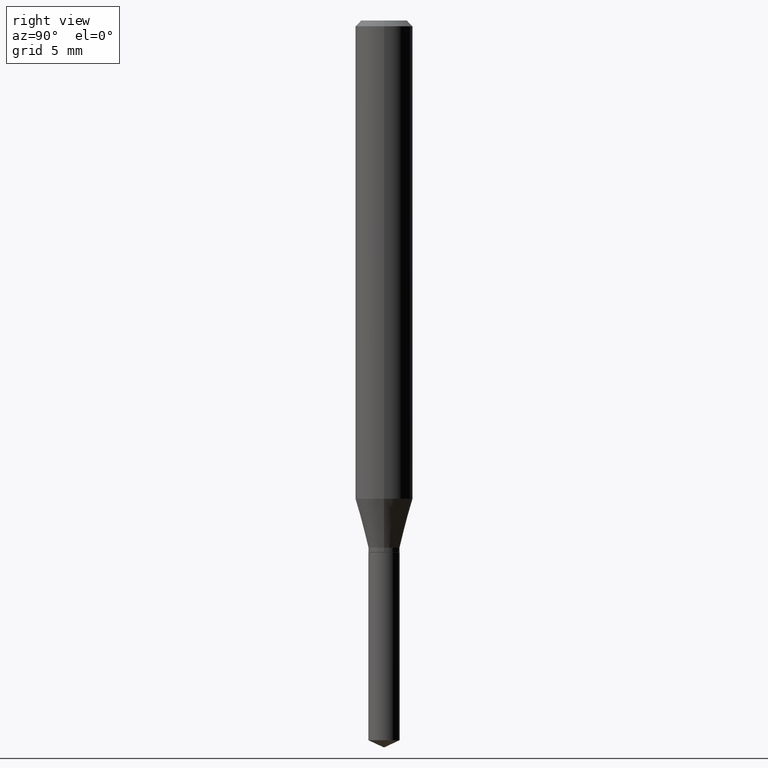
[diagram: clean part render]
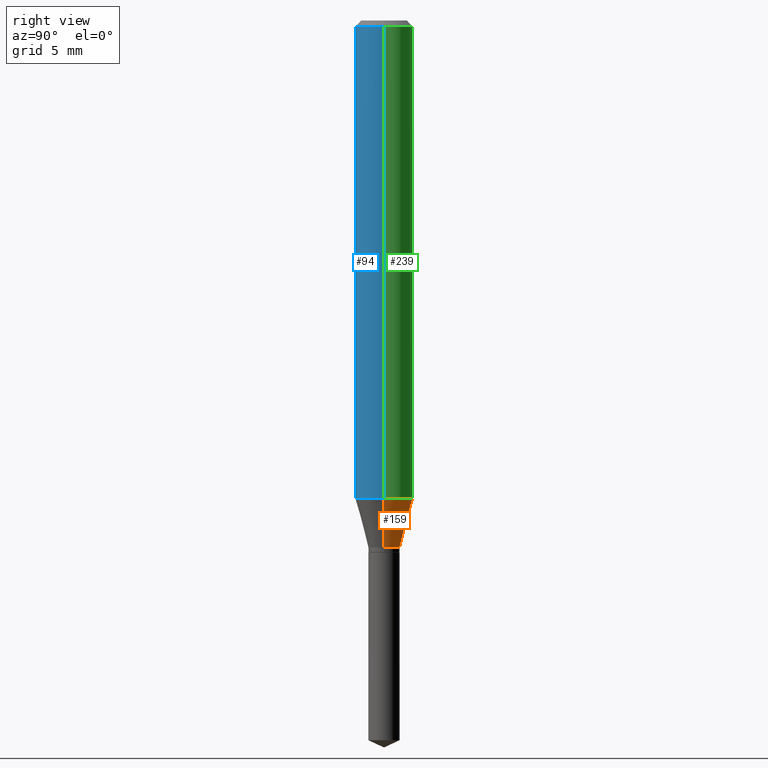
[diagram: same view with three faces highlighted in distinct colors, each labeled with its STEP entity id]
A machine part, right view with three faces highlighted in distinct colors.
Their STEP definitions:

[orange] entity #159 — the highlighted conical surface has half-angle 15 deg.
#12 = CARTESIAN_POINT ( 'NONE',  ( -0.03209999999999999659, -3.575710126423672121E-15, -1.084899999999999975 ) ) ;
#44 = CARTESIAN_POINT ( 'NONE',  ( -0.05905000000000011628, -3.017163723075586861E-15, -0.9843212307360184044 ) ) ;
#63 = DIRECTION ( 'NONE',  ( -2.445468806185136597E-29, 3.491481338843145583E-15, 1.000000000000000000 ) ) ;
#69 = DIRECTION ( 'NONE',  ( 1.000000000000000000, -6.982962677686263555E-15, 0.000000000000000000 ) ) ;
#73 = EDGE_CURVE ( 'NONE', #91, #254, #413, .T. ) ;
#77 = CARTESIAN_POINT ( 'NONE',  ( 2.407126865030695600E-29, -3.436739208541926354E-15, -0.9843212307360184044 ) ) ;
#80 = VERTEX_POINT ( 'NONE', #252 ) ;
#83 = CONICAL_SURFACE ( 'NONE', #358, 0.03209999999999999659, 0.2617993877991498519 ) ;
#89 = CARTESIAN_POINT ( 'NONE',  ( -0.03209999999999999659, -3.559823886331936833E-15, -1.084899999999999975 ) ) ;
#91 = VERTEX_POINT ( 'NONE', #120 ) ;
#93 = DIRECTION ( 'NONE',  ( 1.000000000000000000, -6.982962677686263555E-15, 0.000000000000000000 ) ) ;
#118 = ORIENTED_EDGE ( 'NONE', *, *, #331, .F. ) ;
#120 = CARTESIAN_POINT ( 'NONE',  ( 0.03209999999999999659, -4.012061206464657274E-15, -1.084899999999999975 ) ) ;
#123 = CIRCLE ( 'NONE', #257, 0.05905000000000011628 ) ;
#145 = EDGE_CURVE ( 'NONE', #254, #467, #425, .T. ) ;
#159 = ADVANCED_FACE ( 'NONE', ( #470 ), #83, .T. ) ;
#179 = VECTOR ( 'NONE', #485, 39.37007874015748854 ) ;
#252 = CARTESIAN_POINT ( 'NONE',  ( 0.05905000000000011628, -3.849083154659301274E-15, -0.9843212307360184044 ) ) ;
#254 = VERTEX_POINT ( 'NONE', #12 ) ;
#257 = AXIS2_PLACEMENT_3D ( 'NONE', #77, #378, #303 ) ;
#270 = LINE ( 'NONE', #299, #335 ) ;
#285 = CARTESIAN_POINT ( 'NONE',  ( 2.653089107830254266E-29, -3.787908104510928327E-15, -1.084899999999999975 ) ) ;
#287 = ORIENTED_EDGE ( 'NONE', *, *, #73, .T. ) ;
#299 = CARTESIAN_POINT ( 'NONE',  ( 0.03209999999999999659, -4.012061206464657274E-15, -1.084899999999999975 ) ) ;
#303 = DIRECTION ( 'NONE',  ( 1.000000000000000000, -6.982962677686266711E-15, 0.000000000000000000 ) ) ;
#331 = EDGE_CURVE ( 'NONE', #91, #80, #270, .T. ) ;
#335 = VECTOR ( 'NONE', #444, 39.37007874015748854 ) ;
#350 = AXIS2_PLACEMENT_3D ( 'NONE', #285, #428, #93 ) ;
#358 = AXIS2_PLACEMENT_3D ( 'NONE', #405, #63, #69 ) ;
#372 = EDGE_CURVE ( 'NONE', #80, #467, #123, .T. ) ;
#378 = DIRECTION ( 'NONE',  ( -2.445468806185136597E-29, 3.491481338843145583E-15, 1.000000000000000000 ) ) ;
#405 = CARTESIAN_POINT ( 'NONE',  ( 2.653089107830254266E-29, -3.787908104510928327E-15, -1.084899999999999975 ) ) ;
#413 = CIRCLE ( 'NONE', #350, 0.03209999999999999659 ) ;
#423 = EDGE_LOOP ( 'NONE', ( #287, #426, #490, #118 ) ) ;
#425 = LINE ( 'NONE', #89, #179 ) ;
#426 = ORIENTED_EDGE ( 'NONE', *, *, #145, .T. ) ;
#428 = DIRECTION ( 'NONE',  ( -2.445468806185136597E-29, 3.491481338843145583E-15, 1.000000000000000000 ) ) ;
#444 = DIRECTION ( 'NONE',  ( 0.2588190451025211281, 1.565188264969622954E-15, 0.9659258262890679791 ) ) ;
#467 = VERTEX_POINT ( 'NONE', #44 ) ;
#470 = FACE_OUTER_BOUND ( 'NONE', #423, .T. ) ;
#485 = DIRECTION ( 'NONE',  ( -0.2588190451025211281, 5.211531920934547886E-15, 0.9659258262890679791 ) ) ;
#490 = ORIENTED_EDGE ( 'NONE', *, *, #372, .F. ) ;

[blue] entity #94 — the highlighted cylindrical surface (edge-blend (fillet) strip) has radius 1.4999 mm, axis along (-0, 0, 1).
#3 = VERTEX_POINT ( 'NONE', #176 ) ;
#4 = VECTOR ( 'NONE', #262, 39.37007874015748143 ) ;
#11 = AXIS2_PLACEMENT_3D ( 'NONE', #386, #169, #316 ) ;
#25 = CARTESIAN_POINT ( 'NONE',  ( 0.05905000000000006077, -4.123439461173744764E-16, 2.879382386107503023E-30 ) ) ;
#37 = CARTESIAN_POINT ( 'NONE',  ( 2.407126865030695600E-29, -3.436739208541926354E-15, -0.9843212307360184044 ) ) ;
#44 = CARTESIAN_POINT ( 'NONE',  ( -0.05905000000000011628, -3.017163723075586861E-15, -0.9843212307360184044 ) ) ;
#49 = EDGE_CURVE ( 'NONE', #467, #3, #471, .T. ) ;
#75 = CIRCLE ( 'NONE', #351, 0.05905000000000011628 ) ;
#79 = DIRECTION ( 'NONE',  ( 1.000000000000000000, -6.982962677686266711E-15, 4.876176775795935793E-29 ) ) ;
#80 = VERTEX_POINT ( 'NONE', #252 ) ;
#87 = ORIENTED_EDGE ( 'NONE', *, *, #219, .T. ) ;
#94 = ADVANCED_FACE ( 'NONE', ( #273 ), #382, .T. ) ;
#116 = DIRECTION ( 'NONE',  ( -2.445468806185136597E-29, 3.491481338843145583E-15, 1.000000000000000000 ) ) ;
#134 = DIRECTION ( 'NONE',  ( -2.445468806185136877E-29, 3.491481338843145188E-15, 1.000000000000000000 ) ) ;
#158 = CARTESIAN_POINT ( 'NONE',  ( 0.000000000000000000, 0.000000000000000000, 0.000000000000000000 ) ) ;
#169 = DIRECTION ( 'NONE',  ( -2.445468806185136597E-29, 3.491481338843145583E-15, 1.000000000000000000 ) ) ;
#176 = CARTESIAN_POINT ( 'NONE',  ( -0.05904999999999999832, -1.319411316110491759E-15, -0.01181000000000007218 ) ) ;
#194 = DIRECTION ( 'NONE',  ( -2.445468806185136597E-29, 3.491481338843145583E-15, 1.000000000000000000 ) ) ;
#206 = CARTESIAN_POINT ( 'NONE',  ( 0.05904999999999999832, -4.535783407291118600E-16, -0.01181000000000007218 ) ) ;
#214 = ORIENTED_EDGE ( 'NONE', *, *, #49, .F. ) ;
#219 = EDGE_CURVE ( 'NONE', #80, #478, #226, .T. ) ;
#226 = LINE ( 'NONE', #25, #4 ) ;
#252 = CARTESIAN_POINT ( 'NONE',  ( 0.05905000000000011628, -3.849083154659301274E-15, -0.9843212307360184044 ) ) ;
#262 = DIRECTION ( 'NONE',  ( -2.445468806185136877E-29, 3.491481338843145188E-15, 1.000000000000000000 ) ) ;
#273 = FACE_OUTER_BOUND ( 'NONE', #396, .T. ) ;
#305 = DIRECTION ( 'NONE',  ( 1.000000000000000000, -6.982962677686266711E-15, 0.000000000000000000 ) ) ;
#316 = DIRECTION ( 'NONE',  ( 1.000000000000000000, -6.982962677686266711E-15, 0.000000000000000000 ) ) ;
#328 = AXIS2_PLACEMENT_3D ( 'NONE', #158, #116, #79 ) ;
#351 = AXIS2_PLACEMENT_3D ( 'NONE', #37, #194, #305 ) ;
#355 = ORIENTED_EDGE ( 'NONE', *, *, #395, .T. ) ;
#382 = CYLINDRICAL_SURFACE ( 'NONE', #328, 0.05905000000000006077 ) ;
#386 = CARTESIAN_POINT ( 'NONE',  ( 2.888098660104664204E-31, -4.123439461173780263E-17, -0.01181000000000007218 ) ) ;
#387 = VECTOR ( 'NONE', #134, 39.37007874015748143 ) ;
#395 = EDGE_CURVE ( 'NONE', #467, #80, #75, .T. ) ;
#396 = EDGE_LOOP ( 'NONE', ( #214, #355, #87, #418 ) ) ;
#407 = CIRCLE ( 'NONE', #11, 0.05904999999999999832 ) ;
#418 = ORIENTED_EDGE ( 'NONE', *, *, #448, .F. ) ;
#448 = EDGE_CURVE ( 'NONE', #3, #478, #407, .T. ) ;
#467 = VERTEX_POINT ( 'NONE', #44 ) ;
#469 = CARTESIAN_POINT ( 'NONE',  ( -0.05905000000000006077, 4.195754854663395916E-16, -2.904631170795524694E-30 ) ) ;
#471 = LINE ( 'NONE', #469, #387 ) ;
#478 = VERTEX_POINT ( 'NONE', #206 ) ;

[green] entity #239 — the highlighted cylindrical surface (edge-blend (fillet) strip) has radius 1.4999 mm, axis along (-0, 0, 1).
#3 = VERTEX_POINT ( 'NONE', #176 ) ;
#4 = VECTOR ( 'NONE', #262, 39.37007874015748143 ) ;
#22 = CYLINDRICAL_SURFACE ( 'NONE', #388, 0.05905000000000006077 ) ;
#25 = CARTESIAN_POINT ( 'NONE',  ( 0.05905000000000006077, -4.123439461173744764E-16, 2.879382386107503023E-30 ) ) ;
#38 = DIRECTION ( 'NONE',  ( 1.000000000000000000, -6.982962677686266711E-15, 0.000000000000000000 ) ) ;
#44 = CARTESIAN_POINT ( 'NONE',  ( -0.05905000000000011628, -3.017163723075586861E-15, -0.9843212307360184044 ) ) ;
#49 = EDGE_CURVE ( 'NONE', #467, #3, #471, .T. ) ;
#77 = CARTESIAN_POINT ( 'NONE',  ( 2.407126865030695600E-29, -3.436739208541926354E-15, -0.9843212307360184044 ) ) ;
#80 = VERTEX_POINT ( 'NONE', #252 ) ;
#90 = EDGE_CURVE ( 'NONE', #478, #3, #137, .T. ) ;
#103 = FACE_OUTER_BOUND ( 'NONE', #223, .T. ) ;
#109 = AXIS2_PLACEMENT_3D ( 'NONE', #192, #281, #38 ) ;
#123 = CIRCLE ( 'NONE', #257, 0.05905000000000011628 ) ;
#134 = DIRECTION ( 'NONE',  ( -2.445468806185136877E-29, 3.491481338843145188E-15, 1.000000000000000000 ) ) ;
#137 = CIRCLE ( 'NONE', #109, 0.05904999999999999832 ) ;
#161 = ORIENTED_EDGE ( 'NONE', *, *, #90, .F. ) ;
#176 = CARTESIAN_POINT ( 'NONE',  ( -0.05904999999999999832, -1.319411316110491759E-15, -0.01181000000000007218 ) ) ;
#182 = DIRECTION ( 'NONE',  ( -2.445468806185136597E-29, 3.491481338843145583E-15, 1.000000000000000000 ) ) ;
#183 = ORIENTED_EDGE ( 'NONE', *, *, #219, .F. ) ;
#192 = CARTESIAN_POINT ( 'NONE',  ( 2.888098660104664204E-31, -4.123439461173780263E-17, -0.01181000000000007218 ) ) ;
#206 = CARTESIAN_POINT ( 'NONE',  ( 0.05904999999999999832, -4.535783407291118600E-16, -0.01181000000000007218 ) ) ;
#219 = EDGE_CURVE ( 'NONE', #80, #478, #226, .T. ) ;
#223 = EDGE_LOOP ( 'NONE', ( #319, #363, #161, #183 ) ) ;
#226 = LINE ( 'NONE', #25, #4 ) ;
#239 = ADVANCED_FACE ( 'NONE', ( #103 ), #22, .T. ) ;
#252 = CARTESIAN_POINT ( 'NONE',  ( 0.05905000000000011628, -3.849083154659301274E-15, -0.9843212307360184044 ) ) ;
#257 = AXIS2_PLACEMENT_3D ( 'NONE', #77, #378, #303 ) ;
#259 = DIRECTION ( 'NONE',  ( 1.000000000000000000, -6.982962677686266711E-15, 4.876176775795935793E-29 ) ) ;
#262 = DIRECTION ( 'NONE',  ( -2.445468806185136877E-29, 3.491481338843145188E-15, 1.000000000000000000 ) ) ;
#281 = DIRECTION ( 'NONE',  ( -2.445468806185136597E-29, 3.491481338843145583E-15, 1.000000000000000000 ) ) ;
#303 = DIRECTION ( 'NONE',  ( 1.000000000000000000, -6.982962677686266711E-15, 0.000000000000000000 ) ) ;
#319 = ORIENTED_EDGE ( 'NONE', *, *, #372, .T. ) ;
#363 = ORIENTED_EDGE ( 'NONE', *, *, #49, .T. ) ;
#372 = EDGE_CURVE ( 'NONE', #80, #467, #123, .T. ) ;
#378 = DIRECTION ( 'NONE',  ( -2.445468806185136597E-29, 3.491481338843145583E-15, 1.000000000000000000 ) ) ;
#387 = VECTOR ( 'NONE', #134, 39.37007874015748143 ) ;
#388 = AXIS2_PLACEMENT_3D ( 'NONE', #403, #182, #259 ) ;
#403 = CARTESIAN_POINT ( 'NONE',  ( 0.000000000000000000, 0.000000000000000000, 0.000000000000000000 ) ) ;
#467 = VERTEX_POINT ( 'NONE', #44 ) ;
#469 = CARTESIAN_POINT ( 'NONE',  ( -0.05905000000000006077, 4.195754854663395916E-16, -2.904631170795524694E-30 ) ) ;
#471 = LINE ( 'NONE', #469, #387 ) ;
#478 = VERTEX_POINT ( 'NONE', #206 ) ;